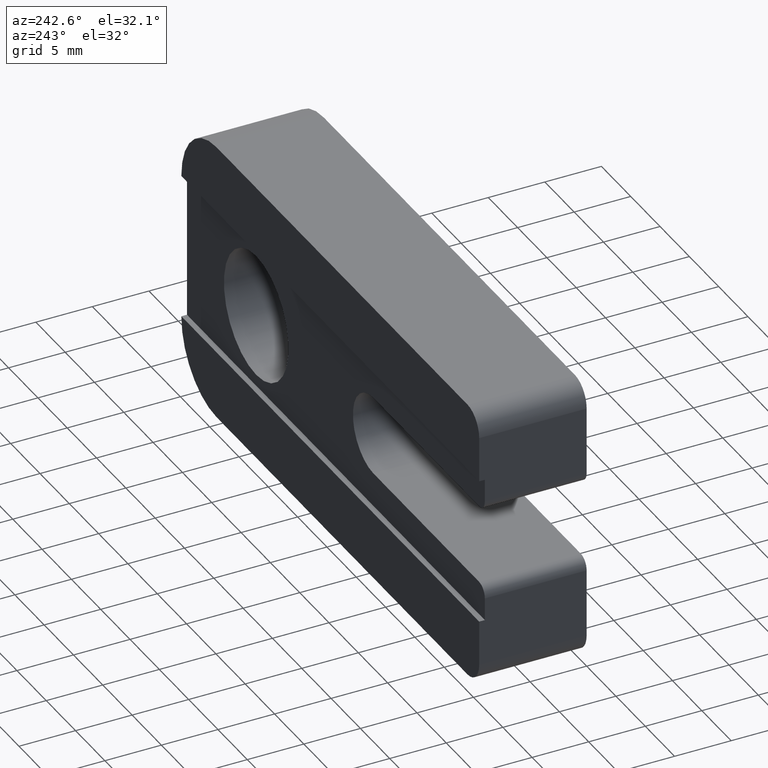
[diagram: clean part render]
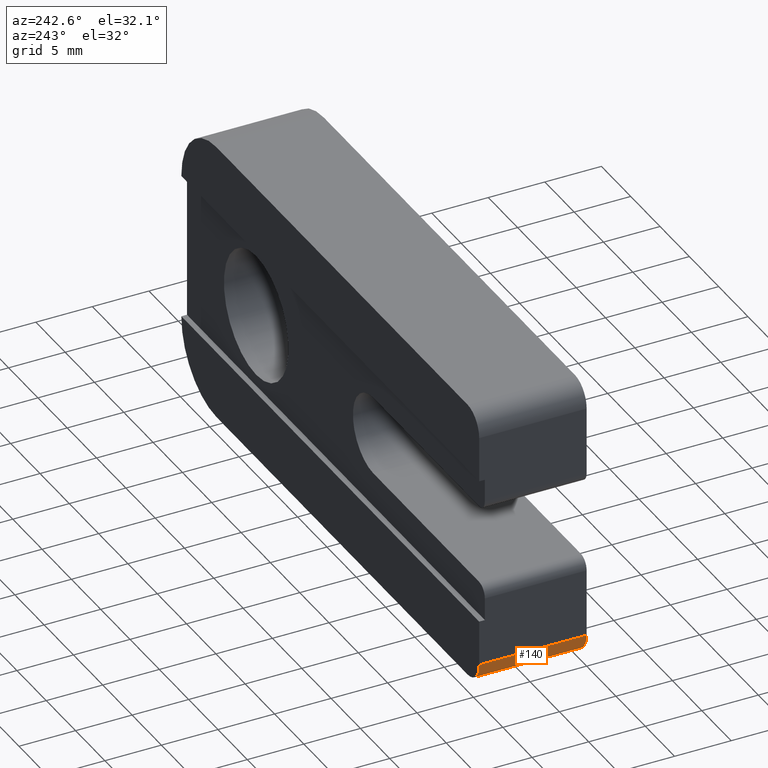
[diagram: same view with one face highlighted and labeled with its STEP entity id]
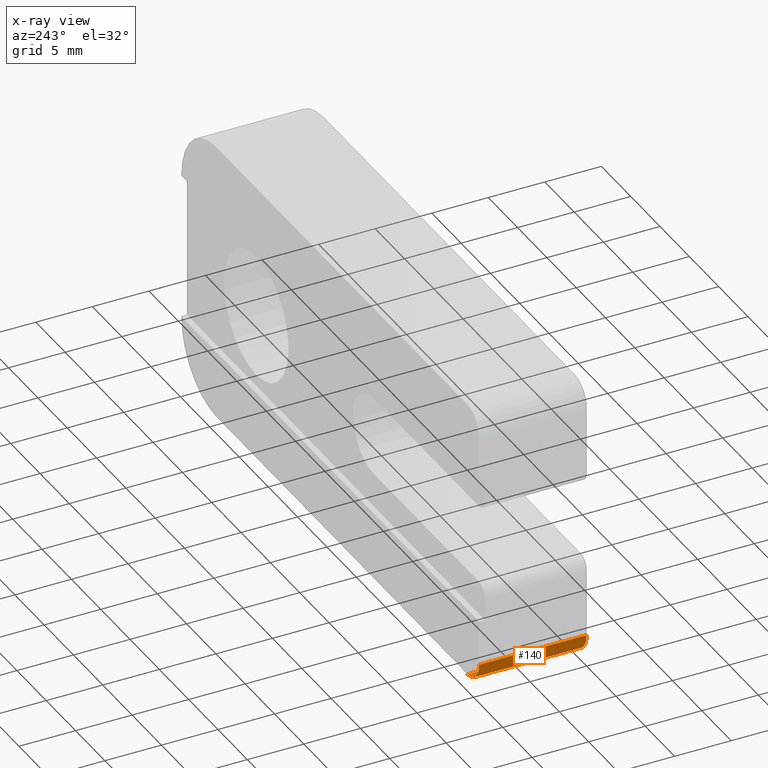
[diagram: x-ray of the same camera — body ghosted, the highlighted face saturated]
A machine part, auxiliary view. The second image highlights one B-rep face of the part: STEP entity #140.
The next image is the same camera in x-ray: the body ghosted, the highlighted face saturated — about 0% of this face is hidden behind the body in this view.
In plain terms, the highlighted cylindrical surface (edge-blend (fillet) strip) has radius 2 mm, axis along (0, -1, 0).
Its self-contained STEP definition (entity closure, byte-faithful):
#39 = EDGE_CURVE ( 'NONE', #701, #707, #615, .T. ) ;
#50 = AXIS2_PLACEMENT_3D ( 'NONE', #408, #434, #373 ) ;
#51 = AXIS2_PLACEMENT_3D ( 'NONE', #442, #410, #380 ) ;
#62 = EDGE_CURVE ( 'NONE', #707, #709, #587, .T. ) ;
#64 = EDGE_CURVE ( 'NONE', #704, #701, #585, .T. ) ;
#76 = EDGE_CURVE ( 'NONE', #709, #704, #567, .T. ) ;
#140 = ADVANCED_FACE ( 'NONE', ( #555 ), #548, .T. ) ;
#178 = CARTESIAN_POINT ( 'NONE',  ( 1.999999999999989100, 0.0000000000000000000, -25.00000000000000000 ) ) ;
#181 = CARTESIAN_POINT ( 'NONE',  ( -1.079383496163346100E-014, 0.0000000000000000000, -22.99999999999999600 ) ) ;
#184 = CARTESIAN_POINT ( 'NONE',  ( 1.999999999999989100, 9.500000000000000000, -25.00000000000000000 ) ) ;
#186 = CARTESIAN_POINT ( 'NONE',  ( -1.079383496163346100E-014, 9.500000000000000000, -22.99999999999999600 ) ) ;
#260 = ORIENTED_EDGE ( 'NONE', *, *, #76, .F. ) ;
#261 = ORIENTED_EDGE ( 'NONE', *, *, #64, .F. ) ;
#262 = ORIENTED_EDGE ( 'NONE', *, *, #39, .F. ) ;
#263 = ORIENTED_EDGE ( 'NONE', *, *, #62, .F. ) ;
#342 = EDGE_LOOP ( 'NONE', ( #263, #262, #261, #260 ) ) ;
#372 = DIRECTION ( 'NONE',  ( -0.0000000000000000000, 1.000000000000000000, -0.0000000000000000000 ) ) ;
#373 = DIRECTION ( 'NONE',  ( 0.0000000000000000000, 0.0000000000000000000, 1.000000000000000000 ) ) ;
#380 = DIRECTION ( 'NONE',  ( 0.0000000000000000000, 0.0000000000000000000, 1.000000000000000000 ) ) ;
#408 = CARTESIAN_POINT ( 'NONE',  ( 1.999999999999989100, 0.0000000000000000000, -23.00000000000000000 ) ) ;
#410 = DIRECTION ( 'NONE',  ( 0.0000000000000000000, 1.000000000000000000, 0.0000000000000000000 ) ) ;
#427 = DIRECTION ( 'NONE',  ( 0.0000000000000000000, -1.000000000000000000, 0.0000000000000000000 ) ) ;
#432 = CARTESIAN_POINT ( 'NONE',  ( 1.999999999999989100, 9.500000000000000000, -25.00000000000000000 ) ) ;
#434 = DIRECTION ( 'NONE',  ( -0.0000000000000000000, -1.000000000000000000, -0.0000000000000000000 ) ) ;
#442 = CARTESIAN_POINT ( 'NONE',  ( 1.999999999999989100, 9.500000000000000000, -23.00000000000000000 ) ) ;
#444 = CARTESIAN_POINT ( 'NONE',  ( -1.079383496163346100E-014, 9.500000000000000000, -22.99999999999999600 ) ) ;
#461 = CARTESIAN_POINT ( 'NONE',  ( 1.999999999999989100, 9.500000000000000000, -23.00000000000000000 ) ) ;
#472 = DIRECTION ( 'NONE',  ( 0.0000000000000000000, -1.000000000000000000, 0.0000000000000000000 ) ) ;
#483 = DIRECTION ( 'NONE',  ( 0.0000000000000000000, 0.0000000000000000000, -1.000000000000000000 ) ) ;
#548 = CYLINDRICAL_SURFACE ( 'NONE', #767, 2.000000000000001800 ) ;
#555 = FACE_OUTER_BOUND ( 'NONE', #342, .T. ) ;
#564 = VECTOR ( 'NONE', #427, 1000.000000000000000 ) ;
#567 = LINE ( 'NONE', #444, #564 ) ;
#585 = CIRCLE ( 'NONE', #50, 2.000000000000001800 ) ;
#587 = CIRCLE ( 'NONE', #51, 2.000000000000001800 ) ;
#613 = VECTOR ( 'NONE', #372, 1000.000000000000000 ) ;
#615 = LINE ( 'NONE', #432, #613 ) ;
#701 = VERTEX_POINT ( 'NONE', #178 ) ;
#704 = VERTEX_POINT ( 'NONE', #181 ) ;
#707 = VERTEX_POINT ( 'NONE', #184 ) ;
#709 = VERTEX_POINT ( 'NONE', #186 ) ;
#767 = AXIS2_PLACEMENT_3D ( 'NONE', #461, #472, #483 ) ;